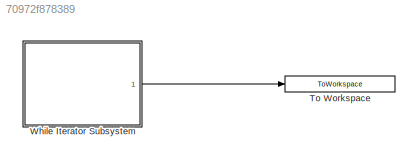
MODEL slx_70972f878389
KIND model
CONFIG AbsTol = auto
CONFIG EnableMultiTasking = on
CONFIG FixedStep = 0.01
CONFIG MaxStep = auto
CONFIG MinStep = auto
CONFIG RelTol = 1e-3
CONFIG SampleTimeConstraint = Unconstrained
CONFIG Solver = FixedStepDiscrete
CONFIG SolverName = FixedStepDiscrete
CONFIG StartTime = 0.0
CONFIG StopTime = 1
BLOCK [ToWorkspace] To Workspace
  MaxDataPoints = inf
  Ports = [1]
  SampleTime = -1
  VariableName = TB_Output
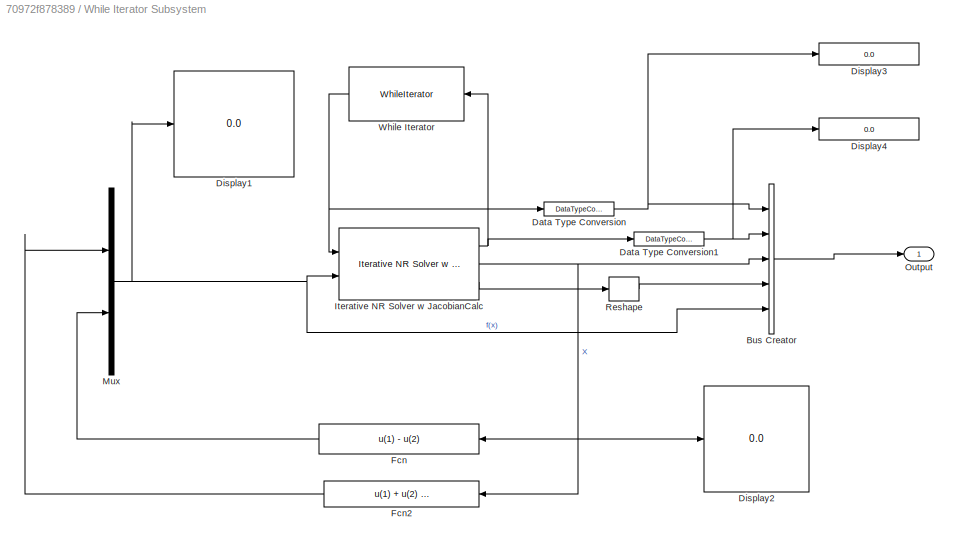
BLOCK [SubSystem] While Iterator Subsystem
  Ports = [0, 1]
  RequestExecContextInheritance = off
  TreatAsAtomicUnit = on
BLOCK [BusCreator] While Iterator Subsystem/Bus Creator
  DisplayOption = bar
  InheritFromInputs = on
  Inputs = 5
  Ports = [5, 1]
BLOCK [DataTypeConversion] While Iterator Subsystem/Data Type Conversion
  RndMeth = Floor
  SaturateOnIntegerOverflow = off
BLOCK [DataTypeConversion] While Iterator Subsystem/Data Type Conversion1
  RndMeth = Floor
  SaturateOnIntegerOverflow = off
BLOCK [Display] While Iterator Subsystem/Display1
  Decimation = 1
  Format = long
  Ports = [1]
BLOCK [Display] While Iterator Subsystem/Display2
  Decimation = 1
  Format = long
  Ports = [1]
BLOCK [Display] While Iterator Subsystem/Display3
  Decimation = 1
  Format = long
  Ports = [1]
BLOCK [Display] While Iterator Subsystem/Display4
  Decimation = 1
  Format = long
  Ports = [1]
BLOCK [Fcn] While Iterator Subsystem/Fcn
  Expr = u(1) - u(2)
BLOCK [Fcn] While Iterator Subsystem/Fcn2
  Expr = u(1) + u(2)  - 6
BLOCK [Reference] While Iterator Subsystem/Iterative NR Solver w JacobianCalc  REF=Lib_Solve_IterNRSolverJC_TMATS/Iterative NR Solver w JacobianCalc
  Ports = [2, 3]
  SourceBlock = Lib_Solve_IterNRSolverJC_TMATS/Iterative NR Solver w JacobianCalc
  SourceType = T-MATS: Iterative NR Solver w Jacobian Calc Library Block
BLOCK [Mux] While Iterator Subsystem/Mux
  DisplayOption = bar
  Inputs = 2
  Ports = [2, 1]
BLOCK [Outport] While Iterator Subsystem/Output
  IconDisplay = Port number
BLOCK [Reshape] While Iterator Subsystem/Reshape
  Ports = [1, 1]
BLOCK [WhileIterator] While Iterator Subsystem/While Iterator
  MaxIters = MWS.SolverDyn.Jatm *2
  Ports = [1, 1]
  ShowIterationPort = on
  WhileBlockType = do-while
LINE While Iterator Subsystem/Bus Creator:1 -> While Iterator Subsystem/Output:1
NET While Iterator Subsystem/Data Type Conversion1:1 -> While Iterator Subsystem/Bus Creator:2, While Iterator Subsystem/Display4:1
NET While Iterator Subsystem/Data Type Conversion:1 -> While Iterator Subsystem/Bus Creator:1, While Iterator Subsystem/Display3:1
LINE While Iterator Subsystem/Fcn2:1 -> While Iterator Subsystem/Mux:1
LINE While Iterator Subsystem/Fcn:1 -> While Iterator Subsystem/Mux:2
NET While Iterator Subsystem/Iterative NR Solver w JacobianCalc:1 -> While Iterator Subsystem/Data Type Conversion1:1, While Iterator Subsystem/While Iterator:1
NET While Iterator Subsystem/Iterative NR Solver w JacobianCalc:2 -> While Iterator Subsystem/Bus Creator:3, While Iterator Subsystem/Display2:1, While Iterator Subsystem/Fcn2:1, While Iterator Subsystem/Fcn:1
LINE While Iterator Subsystem/Iterative NR Solver w JacobianCalc:3 -> While Iterator Subsystem/Reshape:1
NET While Iterator Subsystem/Mux:1 -> While Iterator Subsystem/Bus Creator:5, While Iterator Subsystem/Display1:1, While Iterator Subsystem/Iterative NR Solver w JacobianCalc:2
LINE While Iterator Subsystem/Reshape:1 -> While Iterator Subsystem/Bus Creator:4
NET While Iterator Subsystem/While Iterator:1 -> While Iterator Subsystem/Data Type Conversion:1, While Iterator Subsystem/Iterative NR Solver w JacobianCalc:1
LINE While Iterator Subsystem:1 -> To Workspace:1
note: NET lines group one-source signal fan-out (src -> all destinations, sorted); 1:1 wires keep LINE
